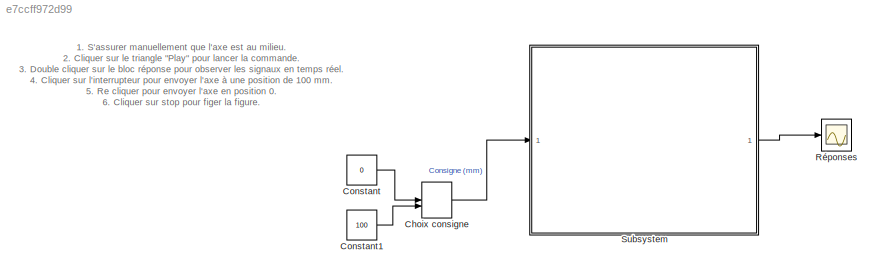
MODEL slx_e7ccff972d99
KIND model
CONFIG AbsTol = auto
CONFIG EnableMultiTasking = on
CONFIG FixedStep = dt
CONFIG MaxStep = auto
CONFIG MinStep = auto
CONFIG RelTol = 1e-3
CONFIG SampleTimeConstraint = Unconstrained
CONFIG Solver = ode5
CONFIG SolverName = ode5
CONFIG StartTime = 0.0
CONFIG StopTime = inf
BLOCK [ManualSwitch] Choix consigne
BLOCK [Constant] Constant
  Value = 0
BLOCK [Constant] Constant1
  Value = 100
BLOCK [Scope] Réponses
  NumInputPorts = 1
  Ports = [1]
  ScopeSpecificationString = C++SS(StrPVP('Location','[489, 351, 1254, 757]'),StrPVP('Open','off'),StrPVP('ZoomMode','xonly'),MxPVP('AxesTitles',24,'struct(''axes1'',''%<SignalLabel>'')'),MxPVP('ScopeGraphics',28,'struct(''FigureColor'',''[1 1 1]'',''AxesColor'',''[1 1 1]'',''AxesTickColor'',''[0 0 0]'',''LineColors'',''[0 0 1;1 0 0;0 1 1;1 0 0;0 1 0;0 0 1]'',''LineStyles'',''-|-|-|-|-|-'',''LineWidths'',''[2 2 0.5 0.5 0.5 0....<+368ch>
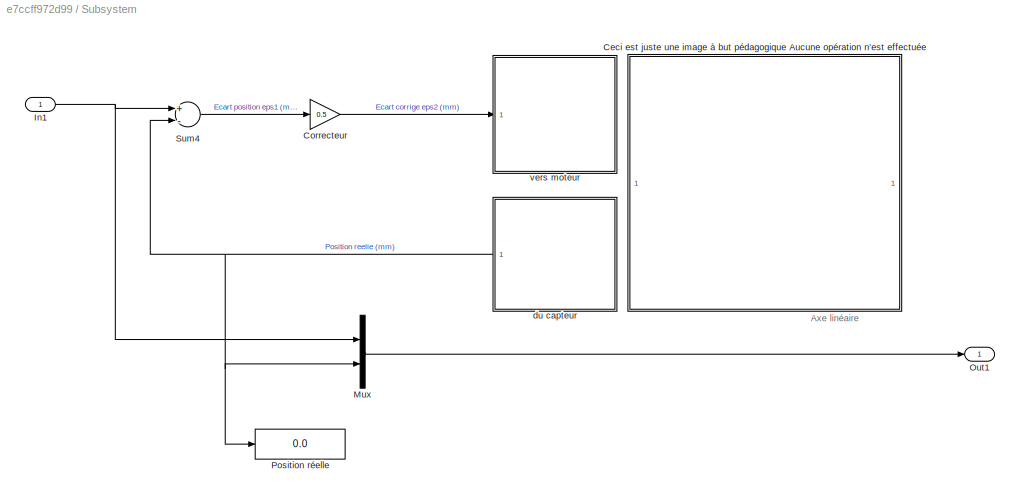
BLOCK [SubSystem] Subsystem
  Permissions = NoReadOrWrite
  Ports = [1, 1]
  RequestExecContextInheritance = off
  Variant = off
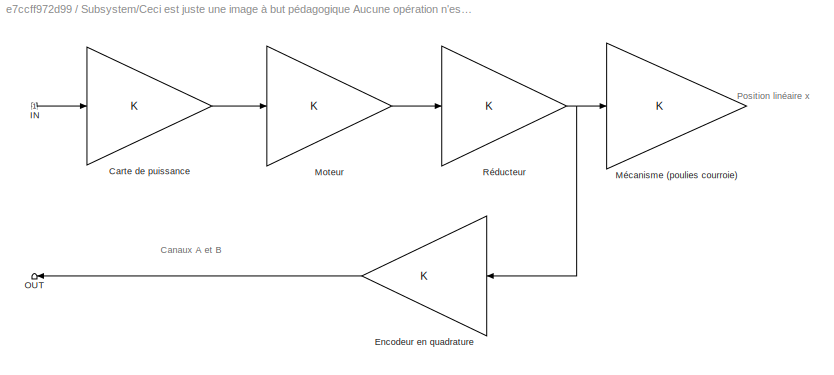
BLOCK [SubSystem] Subsystem/Ceci est juste une image à but pédagogique Aucune opération n'est effectuée
  Ports = []
  RequestExecContextInheritance = off
  Variant = off
BLOCK [Gain] Subsystem/Ceci est juste une image à but pédagogique Aucune opération n'est effectuée/Carte de puissance
  OutDataTypeStr = Inherit: Inherit via internal rule
  ParamDataTypeStr = Inherit: Inherit via internal rule
  SaturateOnIntegerOverflow = off
BLOCK [Gain] Subsystem/Ceci est juste une image à but pédagogique Aucune opération n'est effectuée/Encodeur en quadrature
  OutDataTypeStr = Inherit: Inherit via internal rule
  ParamDataTypeStr = Inherit: Inherit via internal rule
  SaturateOnIntegerOverflow = off
BLOCK [Constant] Subsystem/Ceci est juste une image à but pédagogique Aucune opération n'est effectuée/IN
BLOCK [Gain] Subsystem/Ceci est juste une image à but pédagogique Aucune opération n'est effectuée/Moteur
  OutDataTypeStr = Inherit: Inherit via internal rule
  ParamDataTypeStr = Inherit: Inherit via internal rule
  SaturateOnIntegerOverflow = off
BLOCK [Gain] Subsystem/Ceci est juste une image à but pédagogique Aucune opération n'est effectuée/Mécanisme (poulies courroie)
  OutDataTypeStr = Inherit: Inherit via internal rule
  ParamDataTypeStr = Inherit: Inherit via internal rule
  SaturateOnIntegerOverflow = off
BLOCK [Terminator] Subsystem/Ceci est juste une image à but pédagogique Aucune opération n'est effectuée/OUT
BLOCK [Gain] Subsystem/Ceci est juste une image à but pédagogique Aucune opération n'est effectuée/Réducteur
  OutDataTypeStr = Inherit: Inherit via internal rule
  ParamDataTypeStr = Inherit: Inherit via internal rule
  SaturateOnIntegerOverflow = off
BLOCK [Gain] Subsystem/Correcteur
  Gain = 0.5
  OutDataTypeStr = Inherit: Inherit via internal rule
  ParamDataTypeStr = Inherit: Inherit via internal rule
  SaturateOnIntegerOverflow = off
BLOCK [Inport] Subsystem/In1
  IconDisplay = Port number
BLOCK [Mux] Subsystem/Mux
  DisplayOption = bar
  Inputs = 2
  Ports = [2, 1]
BLOCK [Outport] Subsystem/Out1
  IconDisplay = Port number
BLOCK [Display] Subsystem/Position réelle
  Decimation = 1
  Ports = [1]
BLOCK [Sum] Subsystem/Sum4
  InputSameDT = off
  Inputs = +-
  OutDataTypeStr = Inherit: Inherit via internal rule
  Ports = [2, 1]
  SaturateOnIntegerOverflow = off
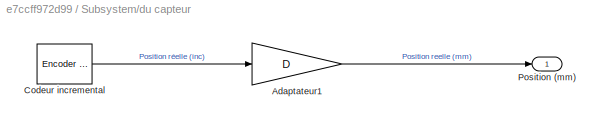
BLOCK [SubSystem] Subsystem/du capteur
  Ports = [0, 1]
  RequestExecContextInheritance = off
  Variant = off
BLOCK [Gain] Subsystem/du capteur/Adaptateur1
  Gain = D
  OutDataTypeStr = Inherit: Inherit via internal rule
  ParamDataTypeStr = Inherit: Inherit via internal rule
  SaturateOnIntegerOverflow = off
BLOCK [Reference] Subsystem/du capteur/Codeur incremental  REF=sldrtlib/Encoder Input
  AttributesFormatString = National Instruments\nPCIe-6321 [auto]
  Ports = [0, 1]
  SourceBlock = sldrtlib/Encoder Input
  SourceType = Simulink Desktop Real-Time Encoder Input
BLOCK [Outport] Subsystem/du capteur/Position (mm)
  IconDisplay = Port number
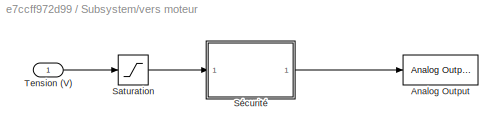
BLOCK [SubSystem] Subsystem/vers moteur
  Ports = [1]
  RequestExecContextInheritance = off
  Variant = off
BLOCK [Reference] Subsystem/vers moteur/Analog Output  REF=sldrtlib/Analog Output
  AttributesFormatString = National Instruments\nPCIe-6321 [auto]
  Ports = [1]
  SourceBlock = sldrtlib/Analog Output
  SourceType = Simulink Desktop Real-Time Analog Output
BLOCK [Saturate] Subsystem/vers moteur/Saturation
  InputPortMap = u0
  LowerLimit = -10
  Ports = [1, 1]
  UpperLimit = 10
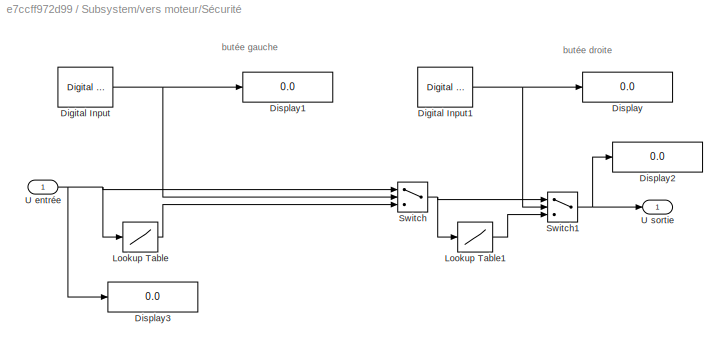
BLOCK [SubSystem] Subsystem/vers moteur/Sécurité
  Ports = [1, 1]
  RequestExecContextInheritance = off
  Variant = off
BLOCK [Reference] Subsystem/vers moteur/Sécurité/Digital Input  REF=sldrtlib/Digital Input
  AttributesFormatString = National Instruments\nPCIe-6321 [auto]
  Ports = [0, 1]
  SourceBlock = sldrtlib/Digital Input
  SourceType = Simulink Desktop Real-Time Digital Input
BLOCK [Reference] Subsystem/vers moteur/Sécurité/Digital Input1  REF=sldrtlib/Digital Input
  AttributesFormatString = National Instruments\nPCIe-6321 [auto]
  Ports = [0, 1]
  SourceBlock = sldrtlib/Digital Input
  SourceType = Simulink Desktop Real-Time Digital Input
BLOCK [Display] Subsystem/vers moteur/Sécurité/Display
  Decimation = 3
  Ports = [1]
BLOCK [Display] Subsystem/vers moteur/Sécurité/Display1
  Decimation = 1
  Ports = [1]
BLOCK [Display] Subsystem/vers moteur/Sécurité/Display2
  Decimation = 3
  Ports = [1]
BLOCK [Display] Subsystem/vers moteur/Sécurité/Display3
  Decimation = 3
  Ports = [1]
BLOCK [Lookup] Subsystem/vers moteur/Sécurité/Lookup Table
  InputValues = [-Vsat 0 Vsat]
  SaturateOnIntegerOverflow = off
  Table = [0 0 Vsat]
BLOCK [Lookup] Subsystem/vers moteur/Sécurité/Lookup Table1
  InputValues = [-Vsat 0 Vsat]
  SaturateOnIntegerOverflow = off
  Table = [-Vsat 0 0]
BLOCK [Switch] Subsystem/vers moteur/Sécurité/Switch
  Criteria = u2 ~= 0
  InputSameDT = off
  SaturateOnIntegerOverflow = off
BLOCK [Switch] Subsystem/vers moteur/Sécurité/Switch1
  Criteria = u2 ~= 0
  InputSameDT = off
  SaturateOnIntegerOverflow = off
BLOCK [Inport] Subsystem/vers moteur/Sécurité/U entrée
  IconDisplay = Port number
BLOCK [Outport] Subsystem/vers moteur/Sécurité/U sortie
  IconDisplay = Port number
BLOCK [Inport] Subsystem/vers moteur/Tension (V)
  IconDisplay = Port number
ANNOTATION (root): 1. S'assurer manuellement que l'axe est au milieu. 2. Cliquer sur le triangle "Play" pour lancer la commande. 3. Double cliquer sur le bloc réponse pour observer les signaux en temps réel. 4. Cliquer sur l'interrupteur pour envoyer l'axe à une position de 100 mm. 5. Re cliquer pour envoyer l'axe en position 0. 6. Cliquer sur stop pour figer la figure.
ANNOTATION Subsystem: Axe linéaire
ANNOTATION Subsystem/Ceci est juste une image à but pédagogique Aucune opération n'est effectuée: Canaux A et B
ANNOTATION Subsystem/Ceci est juste une image à but pédagogique Aucune opération n'est effectuée: Position linéaire x
ANNOTATION Subsystem/vers moteur/Sécurité: butée droite
ANNOTATION Subsystem/vers moteur/Sécurité: butée gauche
LINE Choix consigne:1 -> Subsystem:1
LINE Constant1:1 -> Choix consigne:2
LINE Constant:1 -> Choix consigne:1
LINE Subsystem/Ceci est juste une image à but pédagogique Aucune opération n'est effectuée/Carte de puissance:1 -> Subsystem/Ceci est juste une image à but pédagogique Aucune opération n'est effectuée/Moteur:1
LINE Subsystem/Ceci est juste une image à but pédagogique Aucune opération n'est effectuée/Encodeur en quadrature:1 -> Subsystem/Ceci est juste une image à but pédagogique Aucune opération n'est effectuée/OUT:1
LINE Subsystem/Ceci est juste une image à but pédagogique Aucune opération n'est effectuée/IN:1 -> Subsystem/Ceci est juste une image à but pédagogique Aucune opération n'est effectuée/Carte de puissance:1
LINE Subsystem/Ceci est juste une image à but pédagogique Aucune opération n'est effectuée/Moteur:1 -> Subsystem/Ceci est juste une image à but pédagogique Aucune opération n'est effectuée/Réducteur:1
NET Subsystem/Ceci est juste une image à but pédagogique Aucune opération n'est effectuée/Réducteur:1 -> Subsystem/Ceci est juste une image à but pédagogique Aucune opération n'est effectuée/Encodeur en quadrature:1, Subsystem/Ceci est juste une image à but pédagogique Aucune opération n'est effectuée/Mécanisme (poulies courroie):1
LINE Subsystem/Correcteur:1 -> Subsystem/vers moteur:1
NET Subsystem/In1:1 -> Subsystem/Mux:1, Subsystem/Sum4:1
LINE Subsystem/Mux:1 -> Subsystem/Out1:1
LINE Subsystem/Sum4:1 -> Subsystem/Correcteur:1
LINE Subsystem/du capteur/Adaptateur1:1 -> Subsystem/du capteur/Position (mm):1
LINE Subsystem/du capteur/Codeur incremental:1 -> Subsystem/du capteur/Adaptateur1:1
NET Subsystem/du capteur:1 -> Subsystem/Mux:2, Subsystem/Position réelle:1, Subsystem/Sum4:2
LINE Subsystem/vers moteur/Saturation:1 -> Subsystem/vers moteur/Sécurité:1
NET Subsystem/vers moteur/Sécurité/Digital Input1:1 -> Subsystem/vers moteur/Sécurité/Display:1, Subsystem/vers moteur/Sécurité/Switch1:2
NET Subsystem/vers moteur/Sécurité/Digital Input:1 -> Subsystem/vers moteur/Sécurité/Display1:1, Subsystem/vers moteur/Sécurité/Switch:2
LINE Subsystem/vers moteur/Sécurité/Lookup Table1:1 -> Subsystem/vers moteur/Sécurité/Switch1:3
LINE Subsystem/vers moteur/Sécurité/Lookup Table:1 -> Subsystem/vers moteur/Sécurité/Switch:3
NET Subsystem/vers moteur/Sécurité/Switch1:1 -> Subsystem/vers moteur/Sécurité/Display2:1, Subsystem/vers moteur/Sécurité/U sortie:1
NET Subsystem/vers moteur/Sécurité/Switch:1 -> Subsystem/vers moteur/Sécurité/Lookup Table1:1, Subsystem/vers moteur/Sécurité/Switch1:1
NET Subsystem/vers moteur/Sécurité/U entrée:1 -> Subsystem/vers moteur/Sécurité/Display3:1, Subsystem/vers moteur/Sécurité/Lookup Table:1, Subsystem/vers moteur/Sécurité/Switch:1
LINE Subsystem/vers moteur/Sécurité:1 -> Subsystem/vers moteur/Analog Output:1
LINE Subsystem/vers moteur/Tension (V):1 -> Subsystem/vers moteur/Saturation:1
LINE Subsystem:1 -> Réponses:1
note: NET lines group one-source signal fan-out (src -> all destinations, sorted); 1:1 wires keep LINE
